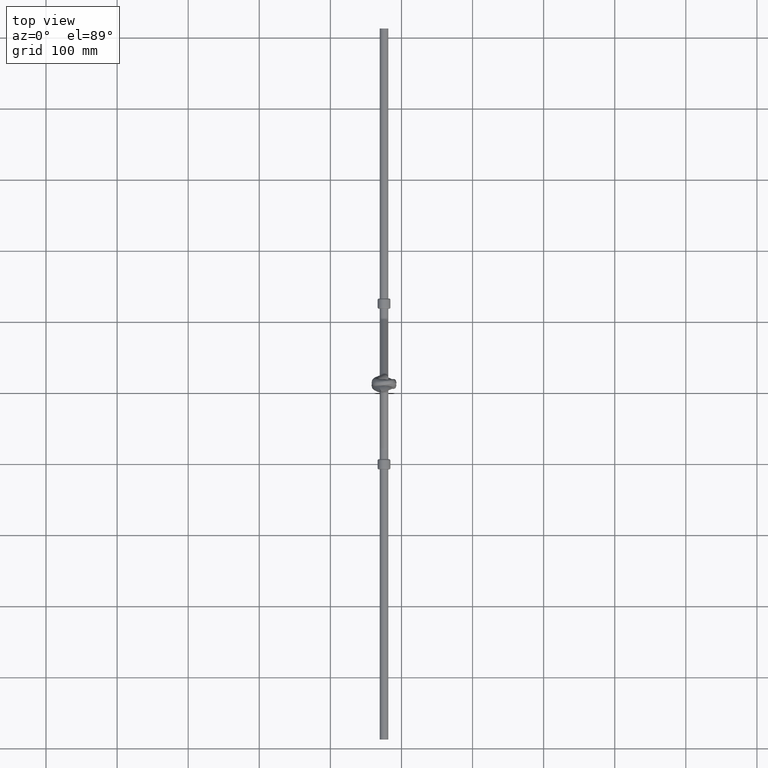
[diagram: clean part render]
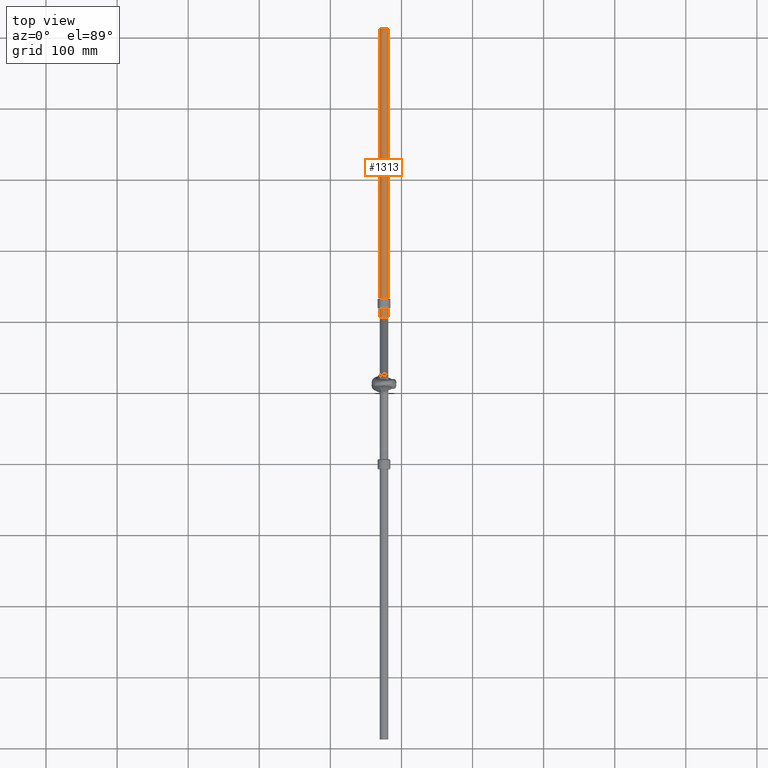
[diagram: same view with one face highlighted and labeled with its STEP entity id]
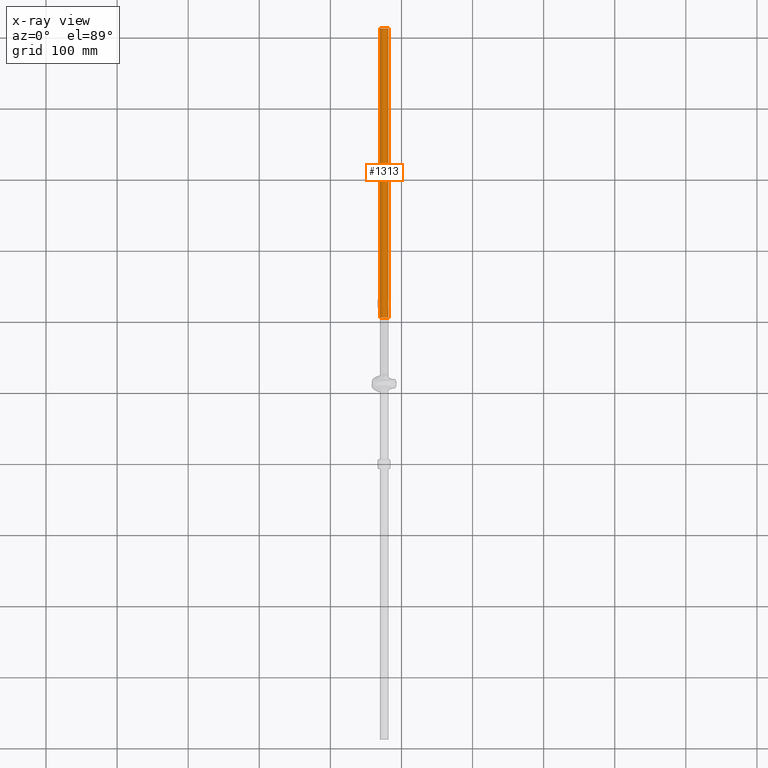
[diagram: x-ray of the same camera — body ghosted, the highlighted face saturated]
A machine part, top view. The second image highlights one B-rep face of the part: STEP entity #1313.
The next image is the same camera in x-ray: the body ghosted, the highlighted face saturated — about 0% of this face is hidden behind the body in this view.
In plain terms, the highlighted cylindrical surface (bore or boss wall) has radius 6 mm, axis along (0, 1, 0).
Its self-contained STEP definition (entity closure, byte-faithful):
#54 = VERTEX_POINT ( 'NONE', #3835 ) ;
#1313 = ADVANCED_FACE ( 'NONE', ( #14045, #1761 ), #10724, .T. ) ;
#1342 = CIRCLE ( 'NONE', #4912, 6.000000000000005329 ) ;
#1346 = CARTESIAN_POINT ( 'NONE',  ( 0.000000000000000000, 493.5000000000000000, -65.25000000000000000 ) ) ;
#1761 = FACE_OUTER_BOUND ( 'NONE', #2494, .T. ) ;
#2062 = DIRECTION ( 'NONE',  ( -0.000000000000000000, 1.000000000000000000, 1.364650601035499045E-16 ) ) ;
#2494 = EDGE_LOOP ( 'NONE', ( #8903 ) ) ;
#3717 = DIRECTION ( 'NONE',  ( 0.000000000000000000, 0.000000000000000000, 1.000000000000000000 ) ) ;
#3835 = CARTESIAN_POINT ( 'NONE',  ( 0.000000000000000000, 86.72077615225553870, -65.25000000000005684 ) ) ;
#4912 = AXIS2_PLACEMENT_3D ( 'NONE', #16071, #5419, #9409 ) ;
#5030 = DIRECTION ( 'NONE',  ( 0.000000000000000000, 1.000000000000000000, 0.000000000000000000 ) ) ;
#5419 = DIRECTION ( 'NONE',  ( 0.000000000000000000, 1.000000000000000000, 0.000000000000000000 ) ) ;
#8670 = EDGE_CURVE ( 'NONE', #54, #54, #1342, .T. ) ;
#8903 = ORIENTED_EDGE ( 'NONE', *, *, #17167, .F. ) ;
#9124 = CARTESIAN_POINT ( 'NONE',  ( 0.000000000000000000, 493.5000000000000000, -71.25000000000001421 ) ) ;
#9409 = DIRECTION ( 'NONE',  ( 0.000000000000000000, 0.000000000000000000, 1.000000000000000000 ) ) ;
#9628 = ORIENTED_EDGE ( 'NONE', *, *, #8670, .T. ) ;
#9944 = EDGE_LOOP ( 'NONE', ( #9628 ) ) ;
#10254 = VERTEX_POINT ( 'NONE', #1346 ) ;
#10724 = CYLINDRICAL_SURFACE ( 'NONE', #16875, 6.000000000000005329 ) ;
#14045 = FACE_OUTER_BOUND ( 'NONE', #9944, .T. ) ;
#15401 = DIRECTION ( 'NONE',  ( 0.000000000000000000, 0.000000000000000000, 1.000000000000000000 ) ) ;
#16071 = CARTESIAN_POINT ( 'NONE',  ( 0.000000000000000000, 86.72077615225553870, -71.25000000000005684 ) ) ;
#16707 = AXIS2_PLACEMENT_3D ( 'NONE', #9124, #5030, #3717 ) ;
#16711 = CIRCLE ( 'NONE', #16707, 6.000000000000005329 ) ;
#16728 = CARTESIAN_POINT ( 'NONE',  ( 0.000000000000000000, 86.72077615225553870, -71.25000000000005684 ) ) ;
#16875 = AXIS2_PLACEMENT_3D ( 'NONE', #16728, #2062, #15401 ) ;
#17167 = EDGE_CURVE ( 'NONE', #10254, #10254, #16711, .T. ) ;